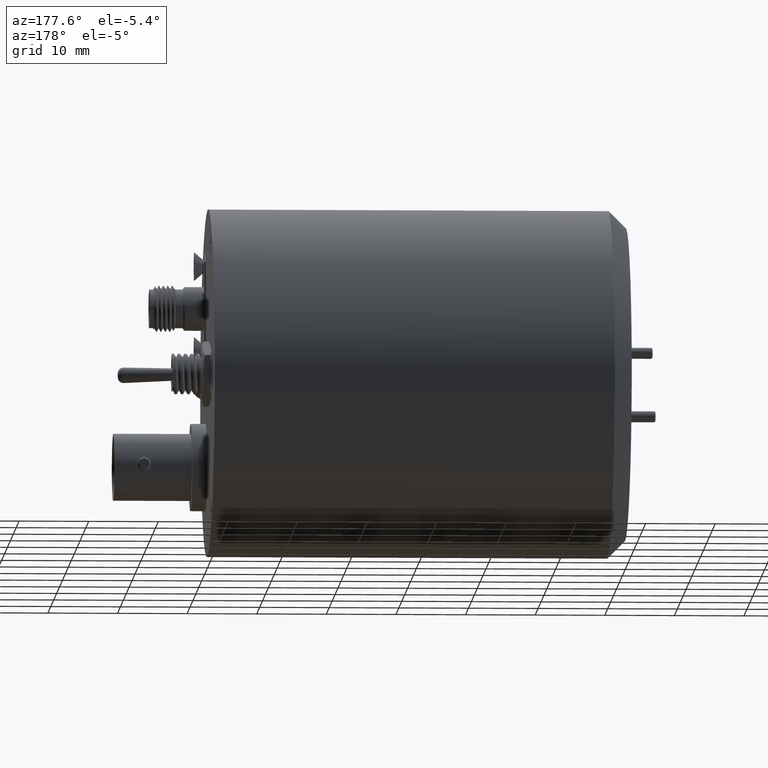
[diagram: clean part render]
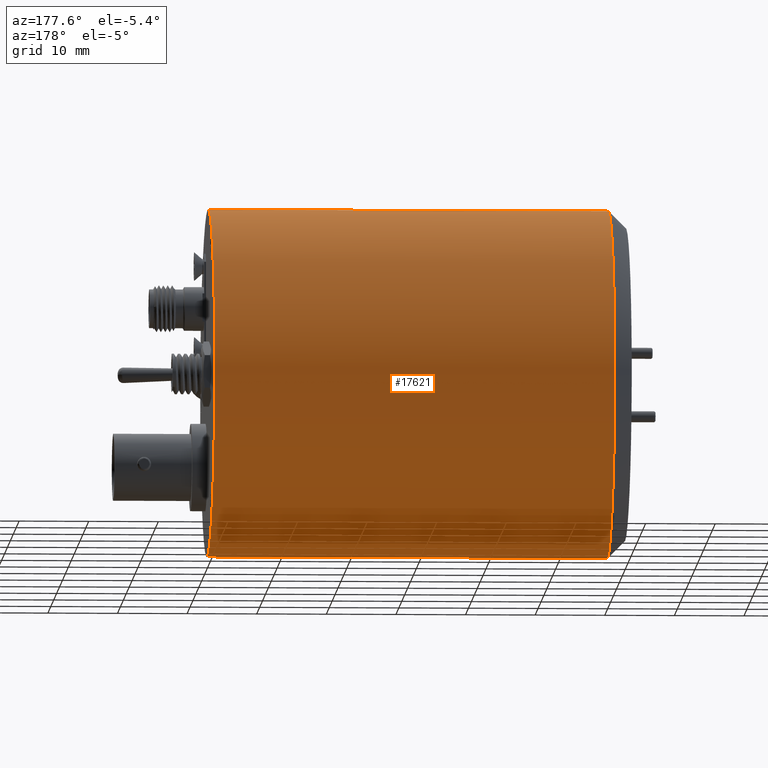
[diagram: same view with one face highlighted and labeled with its STEP entity id]
A machine part, auxiliary view. The second image highlights one B-rep face of the part: STEP entity #17621.
In plain terms, the highlighted cylindrical surface (partial cylindrical patch) has radius 25.019 mm, axis along (1, -0, -0).
Its self-contained STEP definition (entity closure, byte-faithful):
#899 = CARTESIAN_POINT ( 'NONE',  ( 0.0000000000000000000, 0.0000000000000000000, -25.01899999999999800 ) ) ;
#1441 = CARTESIAN_POINT ( 'NONE',  ( -57.45987999999999800, 0.0000000000000000000, 0.0000000000000000000 ) ) ;
#2443 = EDGE_CURVE ( 'NONE', #15471, #29672, #5377, .T. ) ;
#2542 = AXIS2_PLACEMENT_3D ( 'NONE', #1441, #3802, #29318 ) ;
#3802 = DIRECTION ( 'NONE',  ( 1.000000000000000000, -0.0000000000000000000, -0.0000000000000000000 ) ) ;
#3947 = EDGE_LOOP ( 'NONE', ( #18156, #22008, #7076, #28381 ) ) ;
#5377 = CIRCLE ( 'NONE', #2542, 25.01899999999999100 ) ;
#5618 = EDGE_CURVE ( 'NONE', #29672, #11964, #12665, .T. ) ;
#5714 = DIRECTION ( 'NONE',  ( 0.0000000000000000000, 0.0000000000000000000, -1.000000000000000000 ) ) ;
#5797 = CARTESIAN_POINT ( 'NONE',  ( -57.45987999999999800, 3.063943826786762800E-015, 25.01899999999999100 ) ) ;
#7076 = ORIENTED_EDGE ( 'NONE', *, *, #10503, .F. ) ;
#7087 = CARTESIAN_POINT ( 'NONE',  ( 0.0000000000000000000, 3.063943826786762800E-015, 25.01899999999999500 ) ) ;
#7089 = CARTESIAN_POINT ( 'NONE',  ( -57.45987999999999800, 0.0000000000000000000, -25.01899999999999100 ) ) ;
#7362 = CARTESIAN_POINT ( 'NONE',  ( 0.0000000000000000000, 0.0000000000000000000, -25.01899999999999500 ) ) ;
#7672 = CARTESIAN_POINT ( 'NONE',  ( 0.0000000000000000000, 3.063943826786763600E-015, 25.01900000000000200 ) ) ;
#8006 = CARTESIAN_POINT ( 'NONE',  ( 0.0000000000000000000, 0.0000000000000000000, 0.0000000000000000000 ) ) ;
#9439 = DIRECTION ( 'NONE',  ( 1.000000000000000000, -0.0000000000000000000, -0.0000000000000000000 ) ) ;
#10351 = DIRECTION ( 'NONE',  ( 1.000000000000000000, -0.0000000000000000000, -0.0000000000000000000 ) ) ;
#10501 = DIRECTION ( 'NONE',  ( 1.000000000000000000, -0.0000000000000000000, -0.0000000000000000000 ) ) ;
#10503 = EDGE_CURVE ( 'NONE', #28147, #11964, #19056, .T. ) ;
#11663 = DIRECTION ( 'NONE',  ( 1.000000000000000000, -0.0000000000000000000, -0.0000000000000000000 ) ) ;
#11774 = EDGE_CURVE ( 'NONE', #15471, #28147, #25511, .T. ) ;
#11964 = VERTEX_POINT ( 'NONE', #7672 ) ;
#12665 = LINE ( 'NONE', #7087, #23657 ) ;
#14285 = FACE_OUTER_BOUND ( 'NONE', #3947, .T. ) ;
#15471 = VERTEX_POINT ( 'NONE', #7089 ) ;
#16963 = AXIS2_PLACEMENT_3D ( 'NONE', #8006, #10351, #5714 ) ;
#17621 = ADVANCED_FACE ( 'NONE', ( #14285 ), #19062, .T. ) ;
#18156 = ORIENTED_EDGE ( 'NONE', *, *, #2443, .T. ) ;
#19056 = CIRCLE ( 'NONE', #19358, 25.01899999999999800 ) ;
#19062 = CYLINDRICAL_SURFACE ( 'NONE', #16963, 25.01899999999999500 ) ;
#19358 = AXIS2_PLACEMENT_3D ( 'NONE', #26761, #10501, #29296 ) ;
#21851 = VECTOR ( 'NONE', #11663, 1000.000000000000000 ) ;
#22008 = ORIENTED_EDGE ( 'NONE', *, *, #5618, .T. ) ;
#23657 = VECTOR ( 'NONE', #9439, 1000.000000000000000 ) ;
#25511 = LINE ( 'NONE', #7362, #21851 ) ;
#26761 = CARTESIAN_POINT ( 'NONE',  ( 0.0000000000000000000, 0.0000000000000000000, 0.0000000000000000000 ) ) ;
#28147 = VERTEX_POINT ( 'NONE', #899 ) ;
#28381 = ORIENTED_EDGE ( 'NONE', *, *, #11774, .F. ) ;
#29296 = DIRECTION ( 'NONE',  ( 0.0000000000000000000, 0.0000000000000000000, -1.000000000000000000 ) ) ;
#29318 = DIRECTION ( 'NONE',  ( 0.0000000000000000000, 0.0000000000000000000, -1.000000000000000000 ) ) ;
#29672 = VERTEX_POINT ( 'NONE', #5797 ) ;